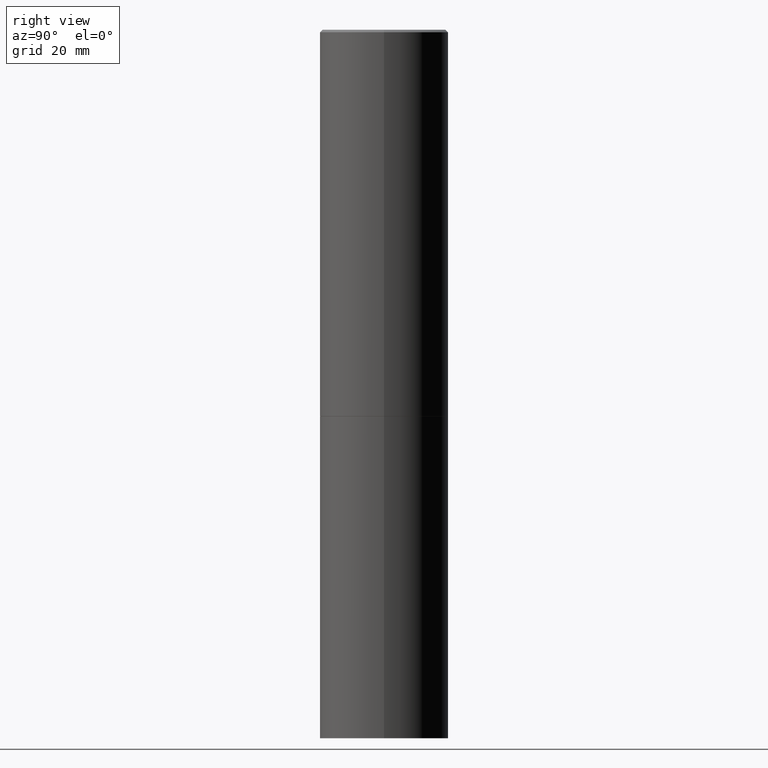
[diagram: clean part render]
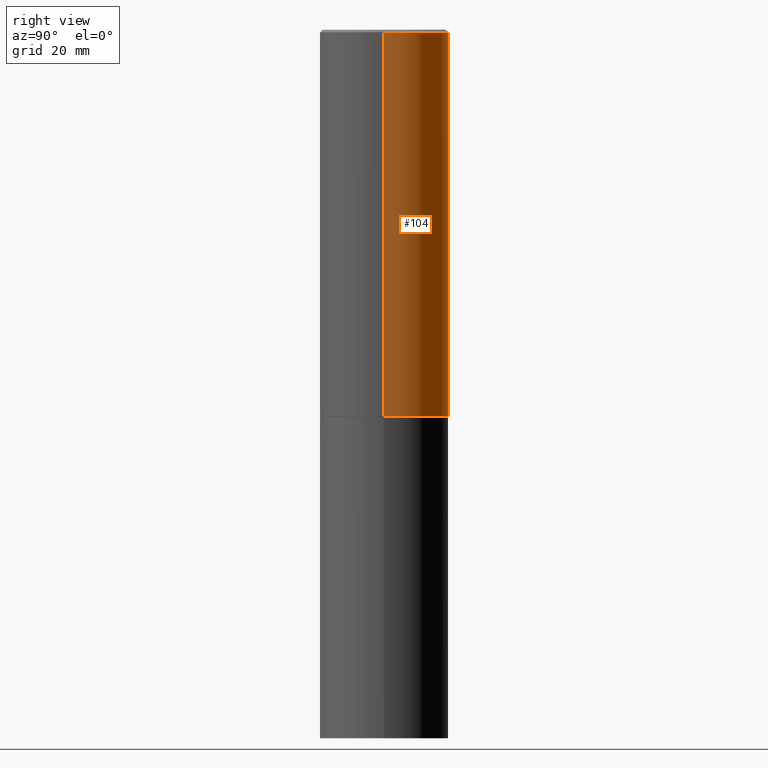
[diagram: same view with one face highlighted and labeled with its STEP entity id]
A machine part, right view. The second image highlights one B-rep face of the part: STEP entity #104.
In plain terms, the highlighted cylindrical surface (partial cylindrical patch) has radius 12.7 mm, axis along (-0, 0, 1).
Its self-contained STEP definition (entity closure, byte-faithful):
#4 = CIRCLE ( 'NONE', #21, 0.4999999999999997224 ) ;
#5 = CARTESIAN_POINT ( 'NONE',  ( 4.890937612370304688E-31, -6.982962677686335982E-17, -0.02000000000000012879 ) ) ;
#17 = CARTESIAN_POINT ( 'NONE',  ( 0.4999999999999998335, -3.491481338843132566E-15, 2.438088387897967336E-29 ) ) ;
#21 = AXIS2_PLACEMENT_3D ( 'NONE', #5, #89, #140 ) ;
#35 = VERTEX_POINT ( 'NONE', #40 ) ;
#37 = CARTESIAN_POINT ( 'NONE',  ( -0.4999999999999998335, 3.552713678800499746E-15, -2.459467545127452330E-29 ) ) ;
#40 = CARTESIAN_POINT ( 'NONE',  ( 0.4999999999999997224, -3.500078625662627502E-15, -0.02000000000000012879 ) ) ;
#49 = DIRECTION ( 'NONE',  ( -2.445468806185136597E-29, 3.491481338843145583E-15, 1.000000000000000000 ) ) ;
#50 = VERTEX_POINT ( 'NONE', #258 ) ;
#61 = CARTESIAN_POINT ( 'NONE',  ( 0.000000000000000000, 0.000000000000000000, 0.000000000000000000 ) ) ;
#63 = DIRECTION ( 'NONE',  ( -2.445468806185136877E-29, 3.491481338843145188E-15, 1.000000000000000000 ) ) ;
#66 = EDGE_CURVE ( 'NONE', #50, #137, #260, .T. ) ;
#67 = LINE ( 'NONE', #17, #273 ) ;
#71 = CARTESIAN_POINT ( 'NONE',  ( 0.5000000000000000000, -1.396243387403372828E-14, -2.999000000000000554 ) ) ;
#85 = ORIENTED_EDGE ( 'NONE', *, *, #66, .T. ) ;
#86 = VECTOR ( 'NONE', #63, 39.37007874015748143 ) ;
#89 = DIRECTION ( 'NONE',  ( -2.445468806185136597E-29, 3.491481338843145583E-15, 1.000000000000000000 ) ) ;
#100 = CARTESIAN_POINT ( 'NONE',  ( 7.333960949749226429E-29, -1.047095253519059492E-14, -2.999000000000000554 ) ) ;
#104 = ADVANCED_FACE ( 'NONE', ( #176 ), #350, .T. ) ;
#106 = ORIENTED_EDGE ( 'NONE', *, *, #110, .F. ) ;
#110 = EDGE_CURVE ( 'NONE', #35, #137, #4, .T. ) ;
#119 = CIRCLE ( 'NONE', #338, 0.5000000000000000000 ) ;
#137 = VERTEX_POINT ( 'NONE', #177 ) ;
#139 = ORIENTED_EDGE ( 'NONE', *, *, #238, .F. ) ;
#140 = DIRECTION ( 'NONE',  ( 1.000000000000000000, -6.982962677686266711E-15, 0.000000000000000000 ) ) ;
#167 = ORIENTED_EDGE ( 'NONE', *, *, #358, .T. ) ;
#176 = FACE_OUTER_BOUND ( 'NONE', #344, .T. ) ;
#177 = CARTESIAN_POINT ( 'NONE',  ( -0.4999999999999997224, 3.421651712066268085E-15, -0.02000000000000012879 ) ) ;
#216 = DIRECTION ( 'NONE',  ( -2.445468806185136877E-29, 3.491481338843145188E-15, 1.000000000000000000 ) ) ;
#238 = EDGE_CURVE ( 'NONE', #278, #35, #67, .T. ) ;
#258 = CARTESIAN_POINT ( 'NONE',  ( -0.5000000000000000000, -1.717677402183226998E-15, -2.999000000000000554 ) ) ;
#260 = LINE ( 'NONE', #37, #86 ) ;
#267 = AXIS2_PLACEMENT_3D ( 'NONE', #61, #345, #284 ) ;
#271 = DIRECTION ( 'NONE',  ( 1.000000000000000000, -6.982962677686266711E-15, 0.000000000000000000 ) ) ;
#273 = VECTOR ( 'NONE', #216, 39.37007874015748143 ) ;
#278 = VERTEX_POINT ( 'NONE', #71 ) ;
#284 = DIRECTION ( 'NONE',  ( 1.000000000000000000, -6.982962677686267499E-15, 4.876176775795936353E-29 ) ) ;
#338 = AXIS2_PLACEMENT_3D ( 'NONE', #100, #49, #271 ) ;
#344 = EDGE_LOOP ( 'NONE', ( #167, #85, #106, #139 ) ) ;
#345 = DIRECTION ( 'NONE',  ( -2.445468806185136597E-29, 3.491481338843145583E-15, 1.000000000000000000 ) ) ;
#350 = CYLINDRICAL_SURFACE ( 'NONE', #267, 0.4999999999999998335 ) ;
#358 = EDGE_CURVE ( 'NONE', #278, #50, #119, .T. ) ;